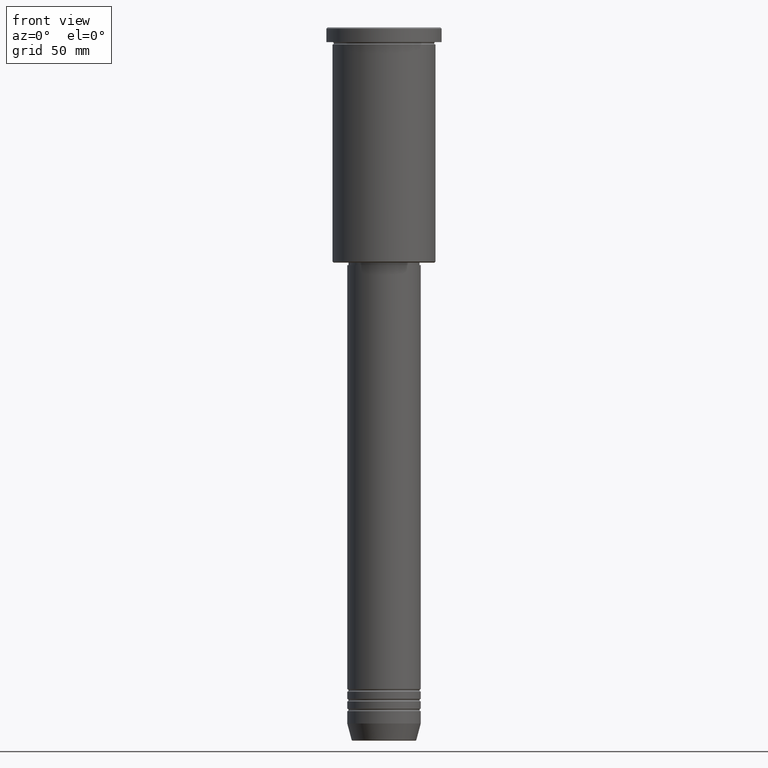
[diagram: clean part render]
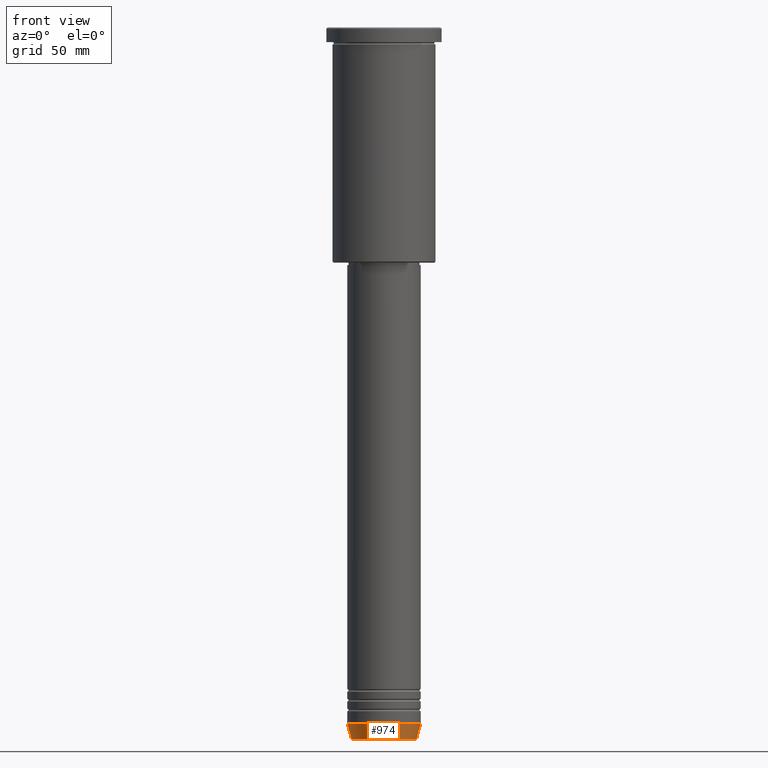
[diagram: same view with one face highlighted and labeled with its STEP entity id]
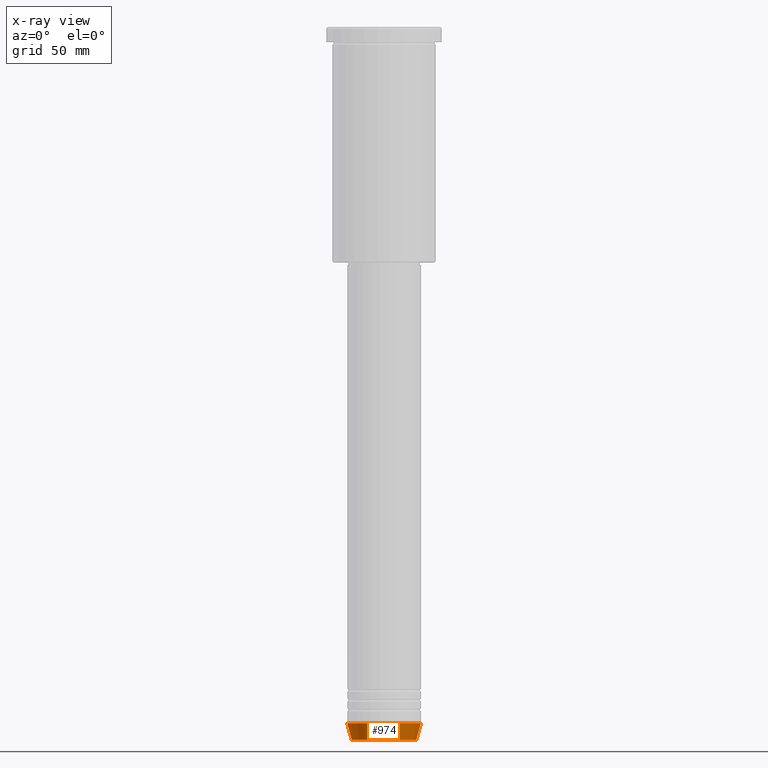
[diagram: x-ray of the same camera — body ghosted, the highlighted face saturated]
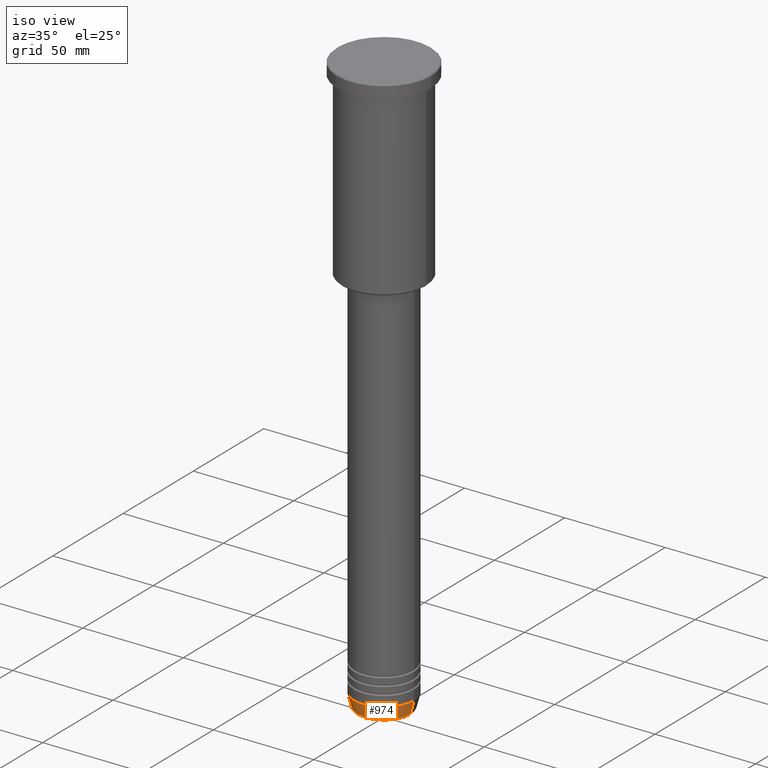
[diagram: same view with one face highlighted and labeled with its STEP entity id]
A machine part, front view. The second image highlights one B-rep face of the part: STEP entity #974.
The next image is the same camera in x-ray: the body ghosted, the highlighted face saturated — about 0% of this face is hidden behind the body in this view.
A second angle (iso view) of the same face is appended — the face is thin or edge-on in the first view.
In plain terms, the highlighted conical surface has half-angle 15 deg.
Its self-contained STEP definition (entity closure, byte-faithful):
#2 = ORIENTED_EDGE ( 'NONE', *, *, #918, .F. ) ;
#9 = ORIENTED_EDGE ( 'NONE', *, *, #540, .T. ) ;
#13 = EDGE_CURVE ( 'NONE', #148, #351, #1057, .T. ) ;
#22 = CARTESIAN_POINT ( 'NONE',  ( -15.00000000000000000, 1.836970198721029589E-15, -284.0000000000000568 ) ) ;
#28 = DIRECTION ( 'NONE',  ( -0.000000000000000000, -0.000000000000000000, 1.000000000000000000 ) ) ;
#111 = DIRECTION ( 'NONE',  ( 1.000000000000000000, 0.000000000000000000, 0.000000000000000000 ) ) ;
#148 = VERTEX_POINT ( 'NONE', #1148 ) ;
#154 = VERTEX_POINT ( 'NONE', #1156 ) ;
#156 = DIRECTION ( 'NONE',  ( -0.000000000000000000, -0.000000000000000000, 1.000000000000000000 ) ) ;
#181 = DIRECTION ( 'NONE',  ( 0.2588190451025213501, 0.000000000000000000, 0.9659258262890680902 ) ) ;
#184 = AXIS2_PLACEMENT_3D ( 'NONE', #848, #28, #111 ) ;
#203 = VECTOR ( 'NONE', #181, 1000.000000000000000 ) ;
#212 = DIRECTION ( 'NONE',  ( -0.2588190451025213501, 3.169619151431772337E-17, 0.9659258262890680902 ) ) ;
#330 = FACE_OUTER_BOUND ( 'NONE', #396, .T. ) ;
#332 = AXIS2_PLACEMENT_3D ( 'NONE', #686, #156, #951 ) ;
#336 = CONICAL_SURFACE ( 'NONE', #817, 15.00000000000000000, 0.2617993877991500740 ) ;
#351 = VERTEX_POINT ( 'NONE', #379 ) ;
#379 = CARTESIAN_POINT ( 'NONE',  ( 15.00000000000000000, 0.000000000000000000, -284.0000000000000568 ) ) ;
#396 = EDGE_LOOP ( 'NONE', ( #2, #9, #526, #401 ) ) ;
#401 = ORIENTED_EDGE ( 'NONE', *, *, #13, .F. ) ;
#526 = ORIENTED_EDGE ( 'NONE', *, *, #707, .T. ) ;
#540 = EDGE_CURVE ( 'NONE', #154, #1117, #850, .T. ) ;
#610 = CARTESIAN_POINT ( 'NONE',  ( 0.000000000000000000, 0.000000000000000000, -284.0000000000000568 ) ) ;
#686 = CARTESIAN_POINT ( 'NONE',  ( 0.000000000000000000, 0.000000000000000000, -290.6294095225513274 ) ) ;
#690 = DIRECTION ( 'NONE',  ( 1.000000000000000000, 0.000000000000000000, 0.000000000000000000 ) ) ;
#707 = EDGE_CURVE ( 'NONE', #1117, #351, #992, .T. ) ;
#766 = DIRECTION ( 'NONE',  ( -0.000000000000000000, -0.000000000000000000, 1.000000000000000000 ) ) ;
#817 = AXIS2_PLACEMENT_3D ( 'NONE', #610, #766, #690 ) ;
#844 = LINE ( 'NONE', #22, #1026 ) ;
#848 = CARTESIAN_POINT ( 'NONE',  ( 0.000000000000000000, 0.000000000000000000, -284.0000000000000568 ) ) ;
#850 = CIRCLE ( 'NONE', #332, 13.22365507213718772 ) ;
#900 = CARTESIAN_POINT ( 'NONE',  ( 13.22365507213718772, 0.000000000000000000, -290.6294095225513274 ) ) ;
#918 = EDGE_CURVE ( 'NONE', #154, #148, #844, .T. ) ;
#951 = DIRECTION ( 'NONE',  ( 1.000000000000000000, 0.000000000000000000, 0.000000000000000000 ) ) ;
#974 = ADVANCED_FACE ( 'NONE', ( #330 ), #336, .T. ) ;
#992 = LINE ( 'NONE', #997, #203 ) ;
#997 = CARTESIAN_POINT ( 'NONE',  ( 15.00000000000000000, 0.000000000000000000, -284.0000000000000568 ) ) ;
#1026 = VECTOR ( 'NONE', #212, 1000.000000000000000 ) ;
#1057 = CIRCLE ( 'NONE', #184, 15.00000000000000000 ) ;
#1117 = VERTEX_POINT ( 'NONE', #900 ) ;
#1148 = CARTESIAN_POINT ( 'NONE',  ( -15.00000000000000000, 1.836970198721029589E-15, -284.0000000000000568 ) ) ;
#1156 = CARTESIAN_POINT ( 'NONE',  ( -13.22365507213718772, 1.728200442216588386E-15, -290.6294095225513274 ) ) ;